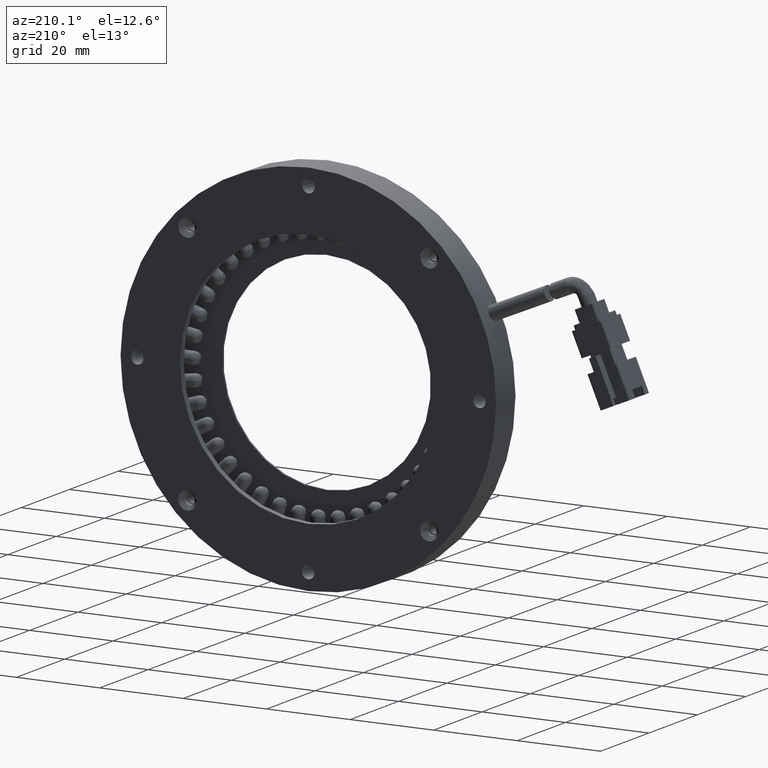
[diagram: clean part render]
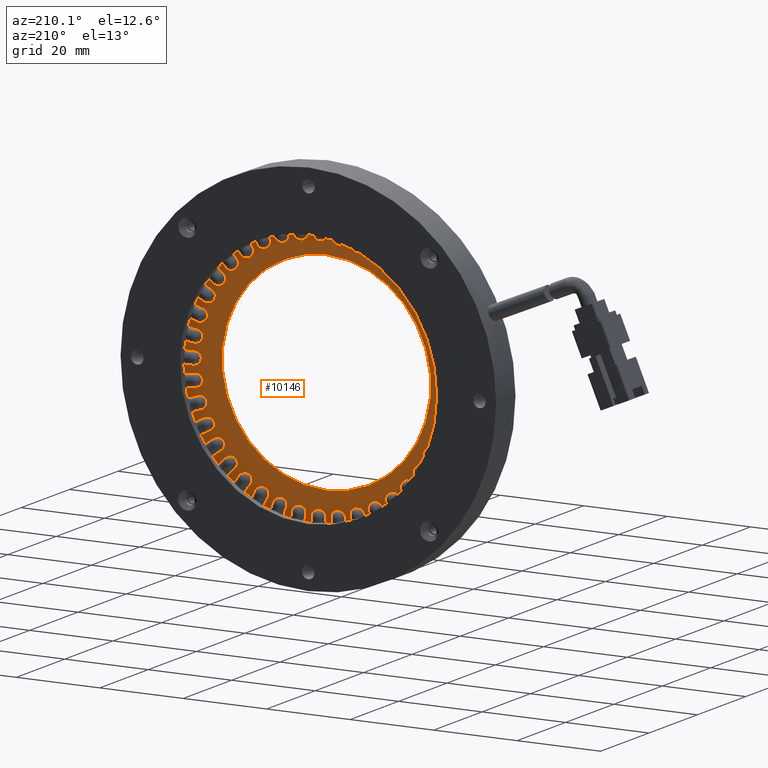
[diagram: same view with one face highlighted and labeled with its STEP entity id]
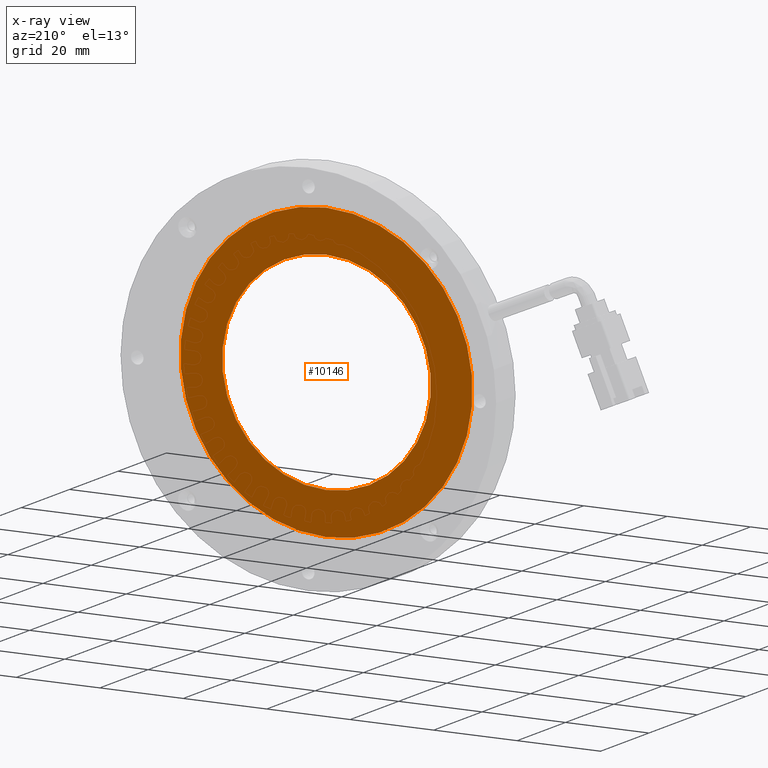
[diagram: x-ray of the same camera — body ghosted, the highlighted face saturated]
A machine part, auxiliary view. The second image highlights one B-rep face of the part: STEP entity #10146.
The next image is the same camera in x-ray: the body ghosted, the highlighted face saturated — about 0% of this face is hidden behind the body in this view.
In plain terms, the highlighted planar face has unit normal (0, -1, 0).
Its self-contained STEP definition (entity closure, byte-faithful):
#126 = VERTEX_POINT ( 'NONE', #9356 ) ;
#723 = DIRECTION ( 'NONE',  ( 0.0000000000000000000, 0.0000000000000000000, -1.000000000000000000 ) ) ;
#776 = AXIS2_PLACEMENT_3D ( 'NONE', #4678, #13870, #723 ) ;
#1768 = DIRECTION ( 'NONE',  ( -0.0000000000000000000, -1.000000000000000000, -0.0000000000000000000 ) ) ;
#4150 = EDGE_CURVE ( 'NONE', #31233, #126, #29204, .T. ) ;
#4397 = ORIENTED_EDGE ( 'NONE', *, *, #18630, .T. ) ;
#4678 = CARTESIAN_POINT ( 'NONE',  ( 3.571428571428565800, 0.1235521235521210800, 0.0000000000000000000 ) ) ;
#5440 = EDGE_LOOP ( 'NONE', ( #25264, #16227 ) ) ;
#6896 = VERTEX_POINT ( 'NONE', #22787 ) ;
#9356 = CARTESIAN_POINT ( 'NONE',  ( 3.571428571428568500, 0.1235521235521210800, 25.00000000000000000 ) ) ;
#10146 = ADVANCED_FACE ( 'NONE', ( #19578, #28092 ), #18549, .F. ) ;
#11002 = AXIS2_PLACEMENT_3D ( 'NONE', #34484, #15499, #37609 ) ;
#12057 = VERTEX_POINT ( 'NONE', #33402 ) ;
#12821 = AXIS2_PLACEMENT_3D ( 'NONE', #20556, #1768, #23762 ) ;
#13870 = DIRECTION ( 'NONE',  ( -0.0000000000000000000, -1.000000000000000000, -0.0000000000000000000 ) ) ;
#14174 = CARTESIAN_POINT ( 'NONE',  ( 3.571428571428565800, 0.1235521235521210800, 0.0000000000000000000 ) ) ;
#15499 = DIRECTION ( 'NONE',  ( 0.0000000000000000000, -1.000000000000000000, 0.0000000000000000000 ) ) ;
#16227 = ORIENTED_EDGE ( 'NONE', *, *, #33186, .F. ) ;
#16680 = DIRECTION ( 'NONE',  ( -0.0000000000000000000, -1.000000000000000000, -0.0000000000000000000 ) ) ;
#17311 = DIRECTION ( 'NONE',  ( 0.0000000000000000000, 0.0000000000000000000, -1.000000000000000000 ) ) ;
#18549 = PLANE ( 'NONE',  #11002 ) ;
#18630 = EDGE_CURVE ( 'NONE', #126, #31233, #34658, .T. ) ;
#19578 = FACE_BOUND ( 'NONE', #24654, .T. ) ;
#20504 = AXIS2_PLACEMENT_3D ( 'NONE', #14174, #36296, #17311 ) ;
#20556 = CARTESIAN_POINT ( 'NONE',  ( 3.571428571428565800, 0.1235521235521210800, 0.0000000000000000000 ) ) ;
#22499 = CIRCLE ( 'NONE', #12821, 35.00000000000000000 ) ;
#22787 = CARTESIAN_POINT ( 'NONE',  ( 3.571428571428565800, 0.1235521235521210800, -35.00000000000000000 ) ) ;
#23448 = CIRCLE ( 'NONE', #26352, 35.00000000000000000 ) ;
#23762 = DIRECTION ( 'NONE',  ( 0.0000000000000000000, 0.0000000000000000000, -1.000000000000000000 ) ) ;
#24654 = EDGE_LOOP ( 'NONE', ( #29594, #4397 ) ) ;
#25264 = ORIENTED_EDGE ( 'NONE', *, *, #33328, .F. ) ;
#26352 = AXIS2_PLACEMENT_3D ( 'NONE', #35673, #16680, #38801 ) ;
#28092 = FACE_OUTER_BOUND ( 'NONE', #5440, .T. ) ;
#29204 = CIRCLE ( 'NONE', #776, 25.00000000000000000 ) ;
#29594 = ORIENTED_EDGE ( 'NONE', *, *, #4150, .T. ) ;
#31233 = VERTEX_POINT ( 'NONE', #37813 ) ;
#33186 = EDGE_CURVE ( 'NONE', #12057, #6896, #23448, .T. ) ;
#33328 = EDGE_CURVE ( 'NONE', #6896, #12057, #22499, .T. ) ;
#33402 = CARTESIAN_POINT ( 'NONE',  ( 3.571428571428569800, 0.1235521235521210800, 35.00000000000000000 ) ) ;
#34484 = CARTESIAN_POINT ( 'NONE',  ( -31.42857142857143800, 0.1235521235521210800, 0.0000000000000000000 ) ) ;
#34658 = CIRCLE ( 'NONE', #20504, 25.00000000000000000 ) ;
#35673 = CARTESIAN_POINT ( 'NONE',  ( 3.571428571428565800, 0.1235521235521210800, 0.0000000000000000000 ) ) ;
#36296 = DIRECTION ( 'NONE',  ( -0.0000000000000000000, -1.000000000000000000, -0.0000000000000000000 ) ) ;
#37609 = DIRECTION ( 'NONE',  ( 0.0000000000000000000, -0.0000000000000000000, -1.000000000000000000 ) ) ;
#37813 = CARTESIAN_POINT ( 'NONE',  ( 3.571428571428565800, 0.1235521235521210800, -25.00000000000000000 ) ) ;
#38801 = DIRECTION ( 'NONE',  ( 0.0000000000000000000, 0.0000000000000000000, -1.000000000000000000 ) ) ;